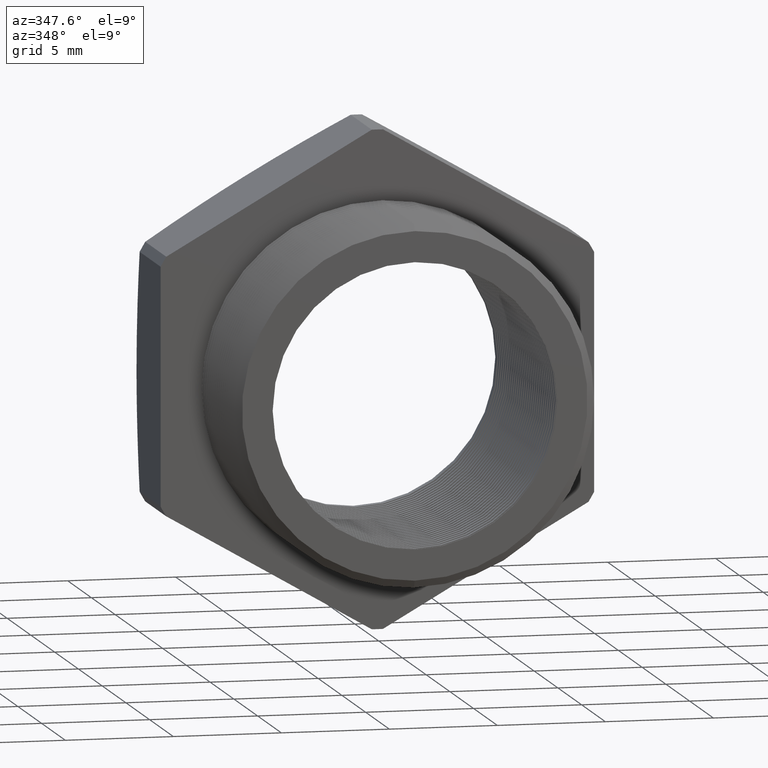
[diagram: clean part render]
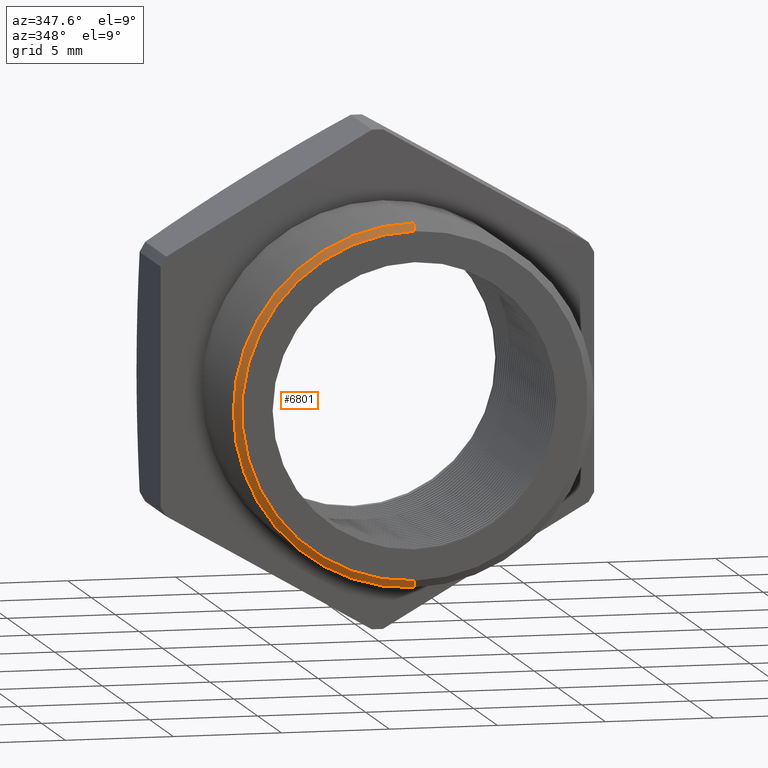
[diagram: same view with one face highlighted and labeled with its STEP entity id]
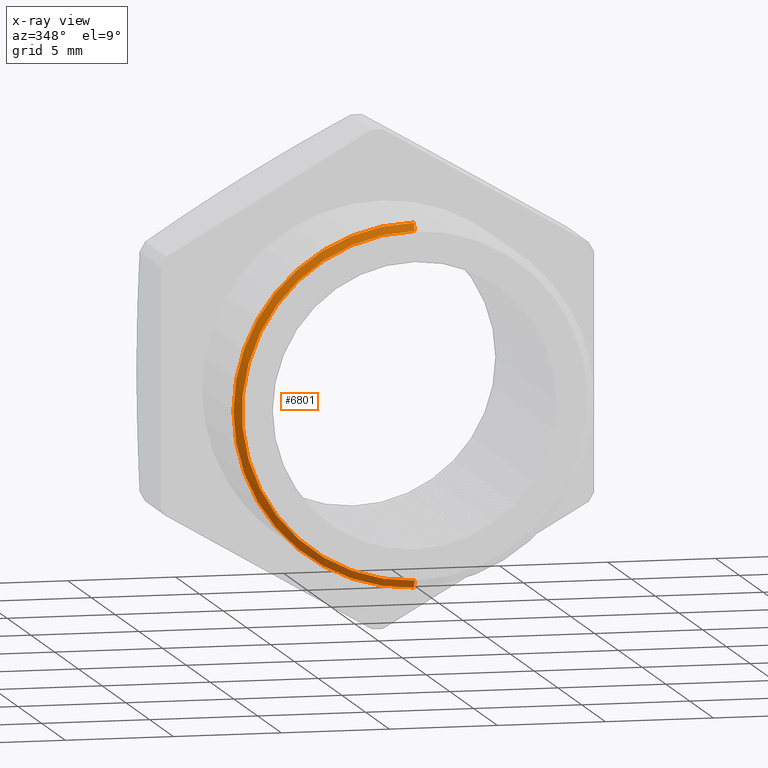
[diagram: x-ray of the same camera — body ghosted, the highlighted face saturated]
A machine part, auxiliary view. The second image highlights one B-rep face of the part: STEP entity #6801.
The next image is the same camera in x-ray: the body ghosted, the highlighted face saturated — about 0% of this face is hidden behind the body in this view.
In plain terms, the highlighted conical surface has half-angle 60 deg.
Its self-contained STEP definition (entity closure, byte-faithful):
#17 = EDGE_CURVE ( 'NONE', #7203, #7206, #4842, .T. ) ;
#2546 = DIRECTION ( 'NONE',  ( 0.0000000000000000000, 0.5000000000000008900, 0.8660254037844380400 ) ) ;
#2547 = VECTOR ( 'NONE', #2546, 39.37007874015748100 ) ;
#2548 = CARTESIAN_POINT ( 'NONE',  ( 0.0000000000000000000, -0.09424510941705205300, 0.3287738815610546400 ) ) ;
#2549 = LINE ( 'NONE', #2548, #2547 ) ;
#3024 = DIRECTION ( 'NONE',  ( 0.0000000000000000000, 0.0000000000000000000, 1.000000000000000000 ) ) ;
#3025 = DIRECTION ( 'NONE',  ( -0.0000000000000000000, 1.000000000000000000, -0.0000000000000000000 ) ) ;
#3026 = CARTESIAN_POINT ( 'NONE',  ( 0.0000000000000000000, -0.09424510941705205300, 0.0000000000000000000 ) ) ;
#3027 = AXIS2_PLACEMENT_3D ( 'NONE', #3026, #3025, #3024 ) ;
#3029 = CONICAL_SURFACE ( 'NONE', #3027, 0.3287738815610546400, 1.047197551196596700 ) ;
#3032 = FACE_OUTER_BOUND ( 'NONE', #6749, .T. ) ;
#3056 = DIRECTION ( 'NONE',  ( 0.0000000000000000000, 0.0000000000000000000, 1.000000000000000000 ) ) ;
#3057 = DIRECTION ( 'NONE',  ( -0.0000000000000000000, 1.000000000000000000, -0.0000000000000000000 ) ) ;
#3058 = CARTESIAN_POINT ( 'NONE',  ( 0.0000000000000000000, -0.09424510941705205300, 0.0000000000000000000 ) ) ;
#3059 = AXIS2_PLACEMENT_3D ( 'NONE', #3058, #3057, #3056 ) ;
#3060 = CIRCLE ( 'NONE', #3059, 0.3287738815610546400 ) ;
#3599 = CARTESIAN_POINT ( 'NONE',  ( 0.0000000000000000000, -0.09424510941705205300, -0.3287738815610546400 ) ) ;
#3617 = CARTESIAN_POINT ( 'NONE',  ( 4.026318816969965600E-017, -0.09424510941705205300, -0.3287738815610546400 ) ) ;
#3618 = LINE ( 'NONE', #3617, #3678 ) ;
#3619 = CARTESIAN_POINT ( 'NONE',  ( 0.0000000000000000000, -0.1021974636441129900, -0.3150000000000000000 ) ) ;
#3626 = CARTESIAN_POINT ( 'NONE',  ( 4.026318816969966200E-017, -0.09424510941705205300, 0.3287738815610546400 ) ) ;
#3676 = CARTESIAN_POINT ( 'NONE',  ( 3.857637417314162700E-017, -0.1021974636441129900, 0.3150000000000000000 ) ) ;
#3677 = DIRECTION ( 'NONE',  ( 1.060575238724906300E-016, 0.5000000000000008900, -0.8660254037844380400 ) ) ;
#3678 = VECTOR ( 'NONE', #3677, 39.37007874015748100 ) ;
#4838 = DIRECTION ( 'NONE',  ( 0.0000000000000000000, 0.0000000000000000000, 1.000000000000000000 ) ) ;
#4839 = DIRECTION ( 'NONE',  ( -0.0000000000000000000, 1.000000000000000000, -0.0000000000000000000 ) ) ;
#4840 = CARTESIAN_POINT ( 'NONE',  ( 0.0000000000000000000, -0.1021974636441129900, 0.0000000000000000000 ) ) ;
#4841 = AXIS2_PLACEMENT_3D ( 'NONE', #4840, #4839, #4838 ) ;
#4842 = CIRCLE ( 'NONE', #4841, 0.3150000000000000000 ) ;
#6514 = EDGE_CURVE ( 'NONE', #7206, #7199, #2549, .T. ) ;
#6749 = EDGE_LOOP ( 'NONE', ( #6802, #6803, #6804, #6805 ) ) ;
#6801 = ADVANCED_FACE ( 'NONE', ( #3032 ), #3029, .T. ) ;
#6802 = ORIENTED_EDGE ( 'NONE', *, *, #7205, .F. ) ;
#6803 = ORIENTED_EDGE ( 'NONE', *, *, #17, .T. ) ;
#6804 = ORIENTED_EDGE ( 'NONE', *, *, #6514, .T. ) ;
#6805 = ORIENTED_EDGE ( 'NONE', *, *, #6823, .F. ) ;
#6823 = EDGE_CURVE ( 'NONE', #7187, #7199, #3060, .T. ) ;
#7187 = VERTEX_POINT ( 'NONE', #3599 ) ;
#7199 = VERTEX_POINT ( 'NONE', #3626 ) ;
#7203 = VERTEX_POINT ( 'NONE', #3619 ) ;
#7205 = EDGE_CURVE ( 'NONE', #7203, #7187, #3618, .T. ) ;
#7206 = VERTEX_POINT ( 'NONE', #3676 ) ;